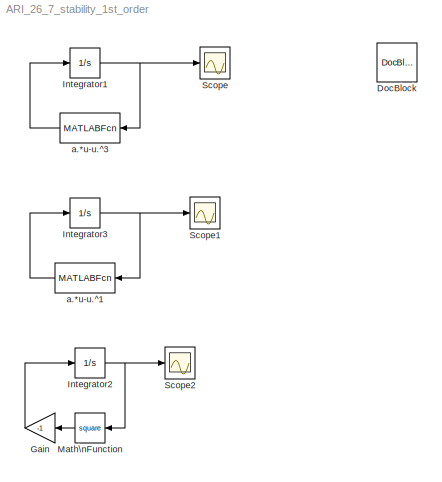
MODEL ARI_26_7_stability_1st_order
KIND model
BLOCK [Reference] DocBlock  REF=simulink/Model-Wide\nUtilities/DocBlock
  DocumentType = Text
  Ports = []
  SID = 9
  SourceBlock = simulink/Model-Wide\nUtilities/DocBlock
  SourceType = DocBlock
  UserData = DataTag0
  UserDataPersistent = on
BLOCK [Gain] Gain
  Gain = -1
  OutDataTypeStr = Inherit: Inherit via internal rule
  ParamDataTypeStr = Inherit: Inherit via internal rule
  SID = 23
  SaturateOnIntegerOverflow = off
BLOCK [Integrator] Integrator1
  InitialCondition = [-2,-1.5,-1,-0.5,-0.1,0,0.1,0.5,1,1.5,2]
  Ports = [1, 1]
  SID = 42
BLOCK [Integrator] Integrator2
  InitialCondition = [-2,-1.5,-1,-0.5,-0.1,0,0.1,0.5,1,1.5,2]
  Ports = [1, 1]
  SID = 20
BLOCK [Integrator] Integrator3
  InitialCondition = [-2,-1.5,-1,-0.5,-0.1,0,0.1,0.5,1,1.5,2]
  Ports = [1, 1]
  SID = 45
BLOCK [Math] Math\nFunction
  Operator = square
  Ports = [1, 1]
  SID = 22
BLOCK [Scope] Scope
  DataFormat = StructureWithTime
  Floating = off
  NumInputPorts = 1
  Ports = [1]
  SID = 43
  SampleTime = 0
  SaveName = ScopeData1
  TimeRange = 0.5
  YMax = 3
  YMin = -3
BLOCK [Scope] Scope1
  DataFormat = StructureWithTime
  Floating = off
  NumInputPorts = 1
  Ports = [1]
  SID = 48
  SampleTime = 0
  TimeRange = 0.5
  YMax = 3
BLOCK [Scope] Scope2
  DataFormat = StructureWithTime
  Floating = off
  NumInputPorts = 1
  Ports = [1]
  SID = 49
  SampleTime = 0
  SaveName = ScopeData2
  TimeRange = 0.5
  YMax = 3
BLOCK [MATLABFcn] a.*u-u.^1
  MATLABFcn = -u.^2
  MaskDisplay = disp('-u.^2')
  MaskIconFrame = on
  MaskIconOpaque = on
  MaskIconRotate = none
  MaskIconUnits = autoscale
  MaskPortRotate = default
  Ports = [1, 1]
  SID = 50
BLOCK [MATLABFcn] a.*u-u.^3
  MATLABFcn = -u.^3
  MaskDisplay = disp('-u.^3')
  MaskIconFrame = on
  MaskIconOpaque = on
  MaskIconRotate = none
  MaskIconUnits = autoscale
  MaskPortRotate = default
  Ports = [1, 1]
  SID = 44
LINE Gain:1 -> Integrator2:1
NET Integrator1:1 -> Scope:1, a.*u-u.^3:1
NET Integrator2:1 -> Math\nFunction:1, Scope2:1
NET Integrator3:1 -> Scope1:1, a.*u-u.^1:1
LINE Math\nFunction:1 -> Gain:1
LINE a.*u-u.^1:1 -> Integrator3:1
LINE a.*u-u.^3:1 -> Integrator1:1
note: NET lines group one-source signal fan-out (src -> all destinations, sorted); 1:1 wires keep LINE
